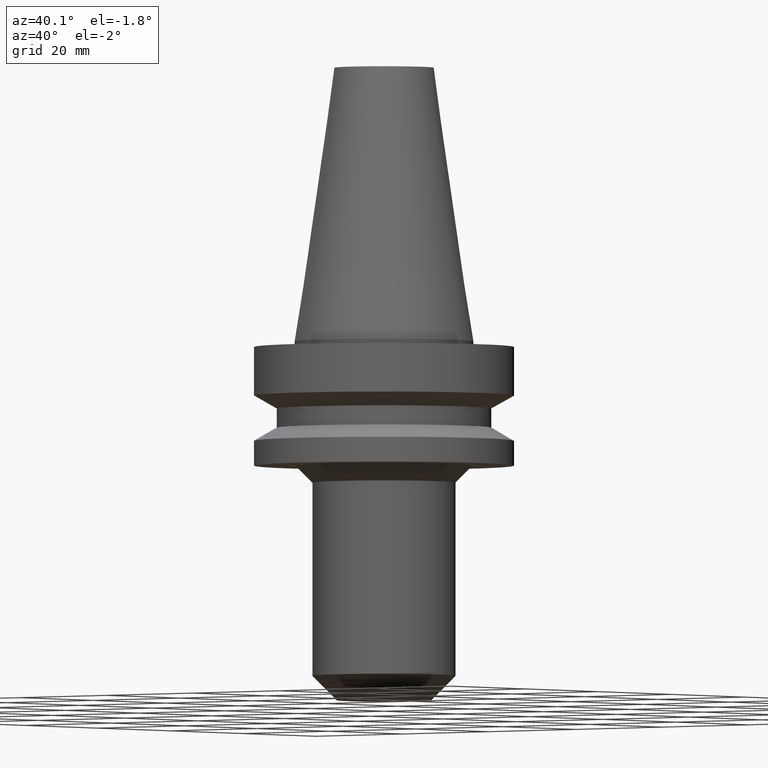
[diagram: clean part render]
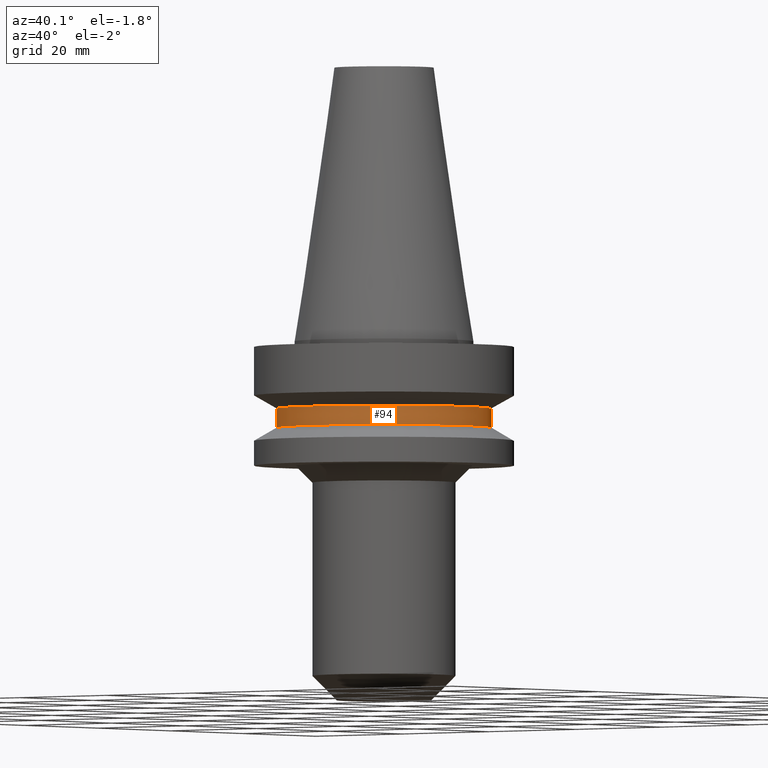
[diagram: same view with one face highlighted and labeled with its STEP entity id]
A machine part, auxiliary view. The second image highlights one B-rep face of the part: STEP entity #94.
In plain terms, the highlighted cylindrical surface (bore or boss wall) has radius 19 mm, axis along (0, 0, -1).
Its self-contained STEP definition (entity closure, byte-faithful):
#72=EDGE_CURVE('Unnamed[1]',#168,#168,#169,.T.);
#85=EDGE_CURVE('Unnamed[1]',#187,#187,#188,.T.);
#94=ADVANCED_FACE('Unnamed[1]',(#201,#202),#203,.T.);
#168=VERTEX_POINT('',#292);
#169=CIRCLE('',#293,19.0);
#187=VERTEX_POINT('',#317);
#188=CIRCLE('',#318,19.0);
#201=FACE_BOUND('',#334,.T.);
#202=FACE_BOUND('',#335,.T.);
#203=CYLINDRICAL_SURFACE('',#336,19.0);
#292=CARTESIAN_POINT('',(9.36279151221199E-016,19.0,-15.29059892));
#293=AXIS2_PLACEMENT_3D('',#422,#423,#424);
#317=CARTESIAN_POINT('',(7.29240495619202E-016,19.0,-11.90940108));
#318=AXIS2_PLACEMENT_3D('',#442,#443,#444);
#334=EDGE_LOOP('',(#458));
#335=EDGE_LOOP('',(#459));
#336=AXIS2_PLACEMENT_3D('',#460,#461,#462);
#422=CARTESIAN_POINT('',(9.36279151221199E-016,1.8725583024424E-015,-15.29059892));
#423=DIRECTION('',(6.12323399573677E-017,1.22464679914735E-016,-1.0));
#424=DIRECTION('',(-1.23259516440783E-032,1.0,1.22464679914735E-016));
#442=CARTESIAN_POINT('',(7.29240495619202E-016,1.4584809912384E-015,-11.90940108));
#443=DIRECTION('',(6.12323399573677E-017,1.22464679914735E-016,-1.0));
#444=DIRECTION('',(-1.23259516440783E-032,1.0,1.22464679914735E-016));
#458=ORIENTED_EDGE('',*,*,#72,.F.);
#459=ORIENTED_EDGE('',*,*,#85,.T.);
#460=CARTESIAN_POINT('',(8.32759823420201E-016,1.6655196468404E-015,-13.6));
#461=DIRECTION('',(6.12323399573677E-017,1.22464679914735E-016,-1.0));
#462=DIRECTION('',(-1.23259516440783E-032,1.0,1.22464679914735E-016));